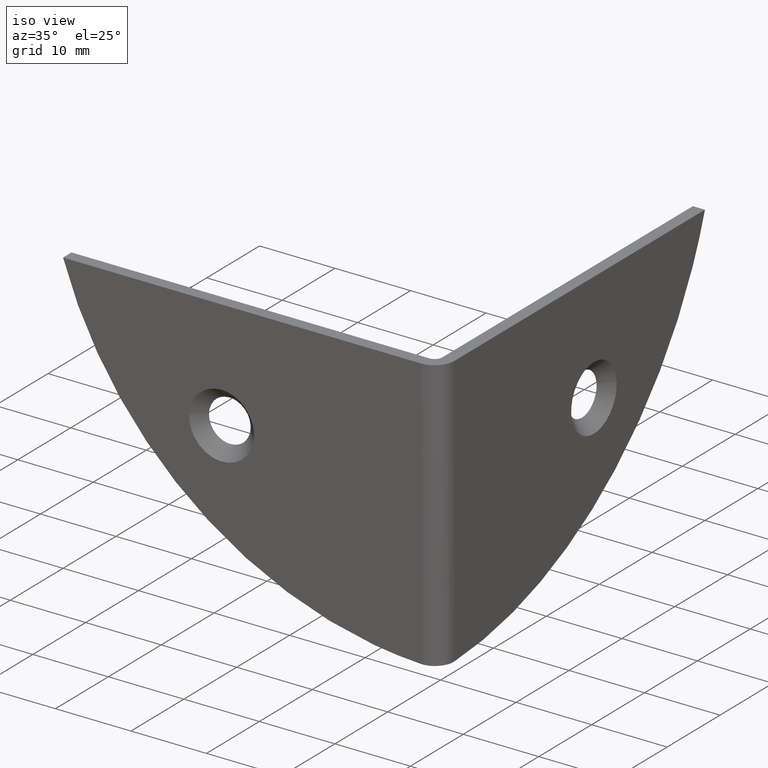
[diagram: clean part render]
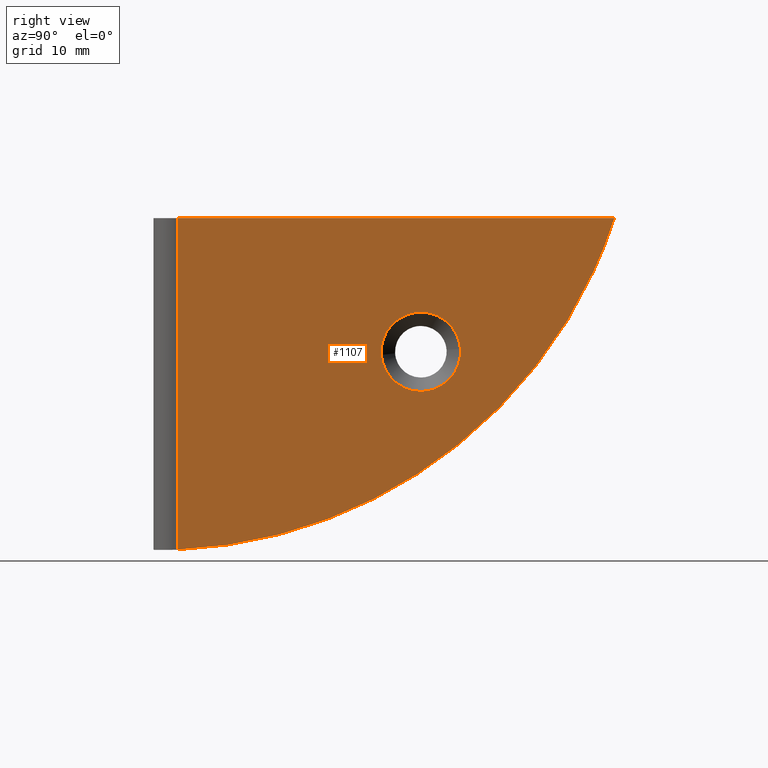
[diagram: tour spotlight — one face highlighted and labeled with its STEP entity id]
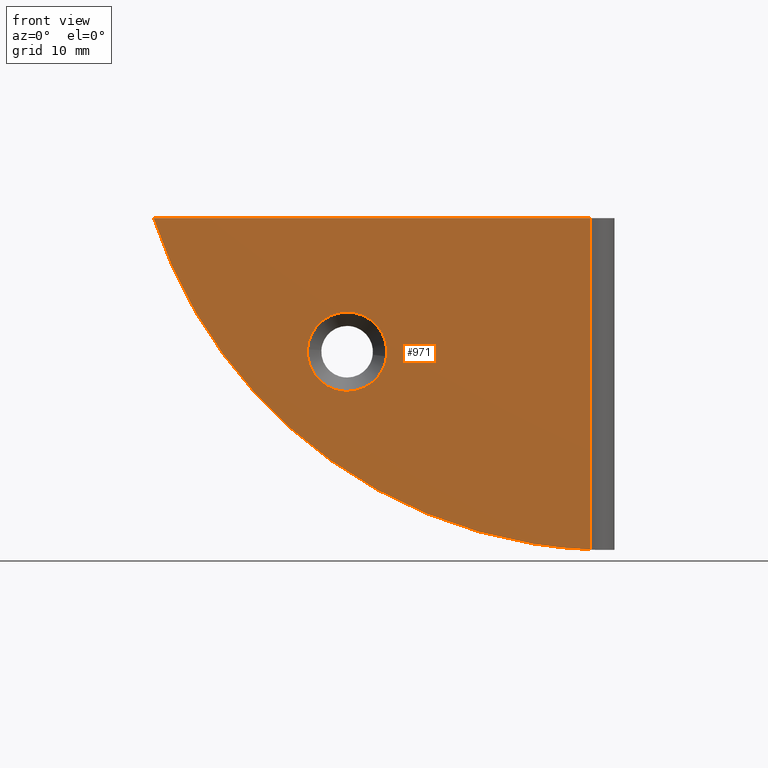
[diagram: tour spotlight — one face highlighted and labeled with its STEP entity id]
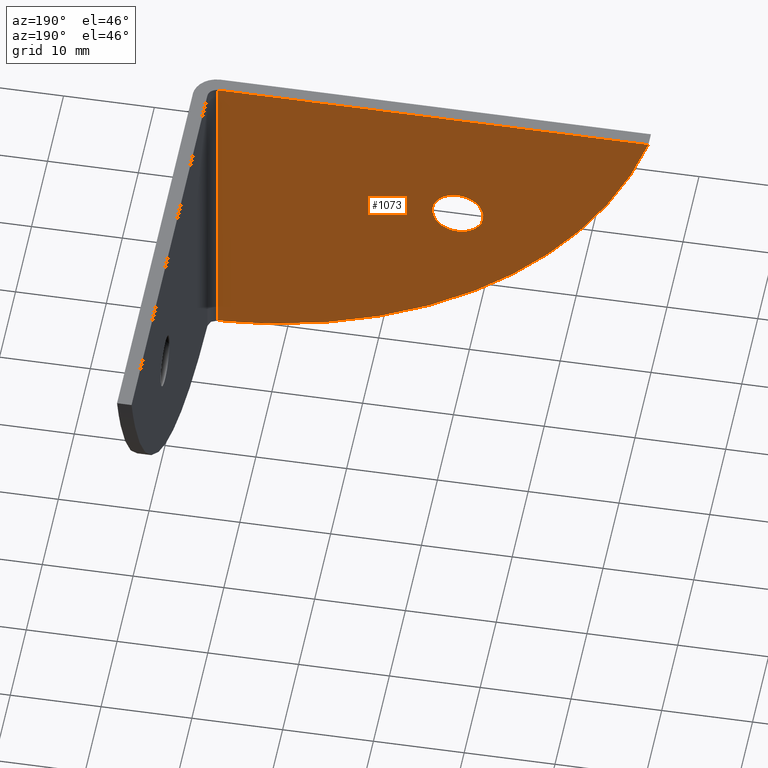
[diagram: tour spotlight — one face highlighted and labeled with its STEP entity id]
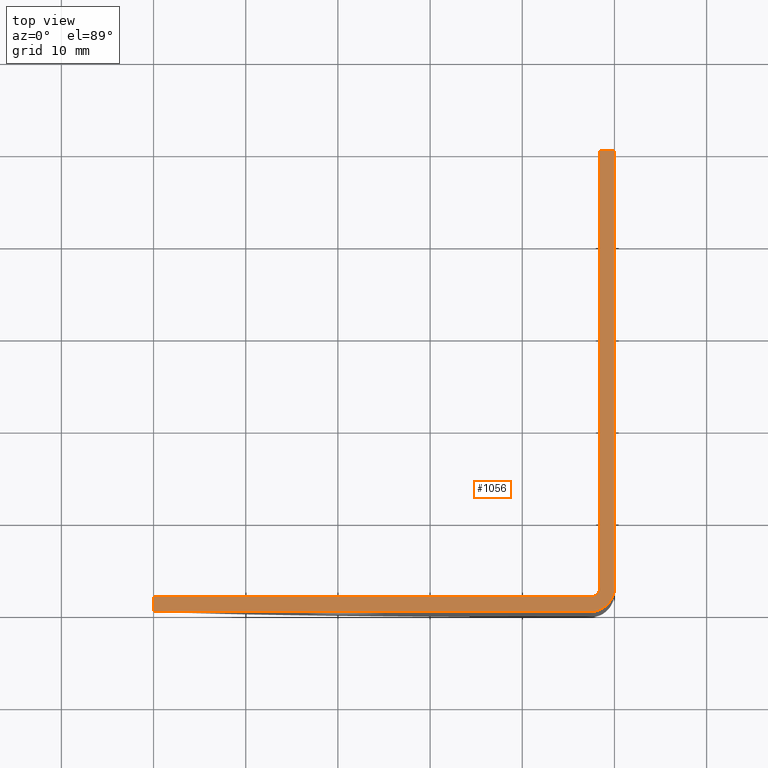
[diagram: tour spotlight — one face highlighted and labeled with its STEP entity id]
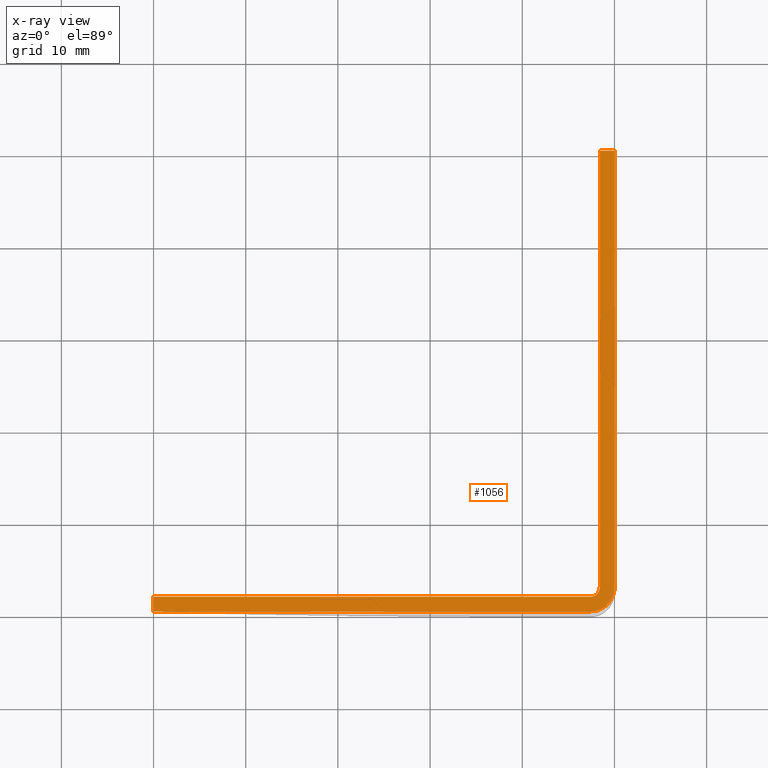
[diagram: x-ray of the same camera — body ghosted, this tour face saturated]
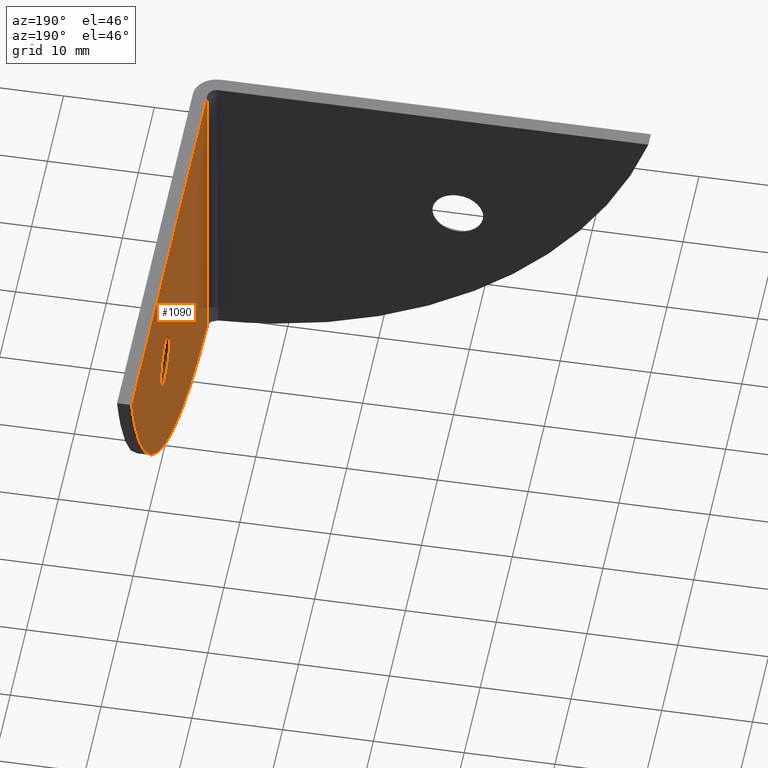
[diagram: tour spotlight — one face highlighted and labeled with its STEP entity id]
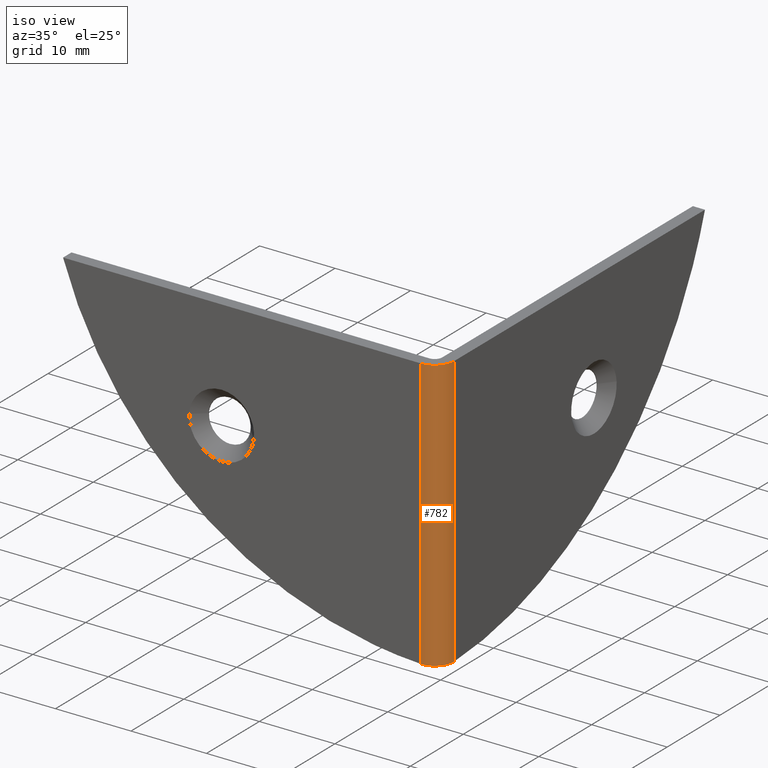
[diagram: tour spotlight — one face highlighted and labeled with its STEP entity id]
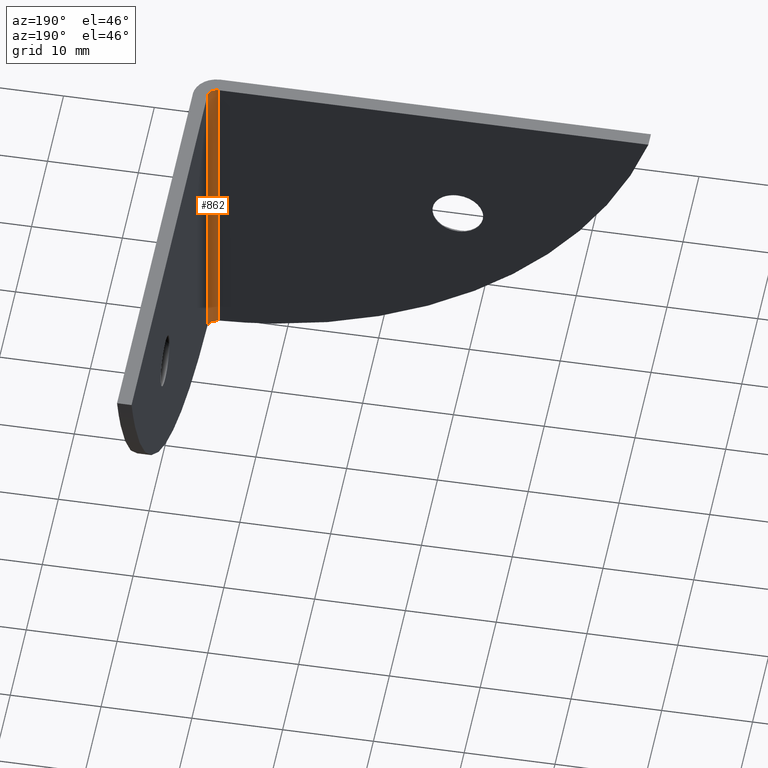
[diagram: tour spotlight — one face highlighted and labeled with its STEP entity id]
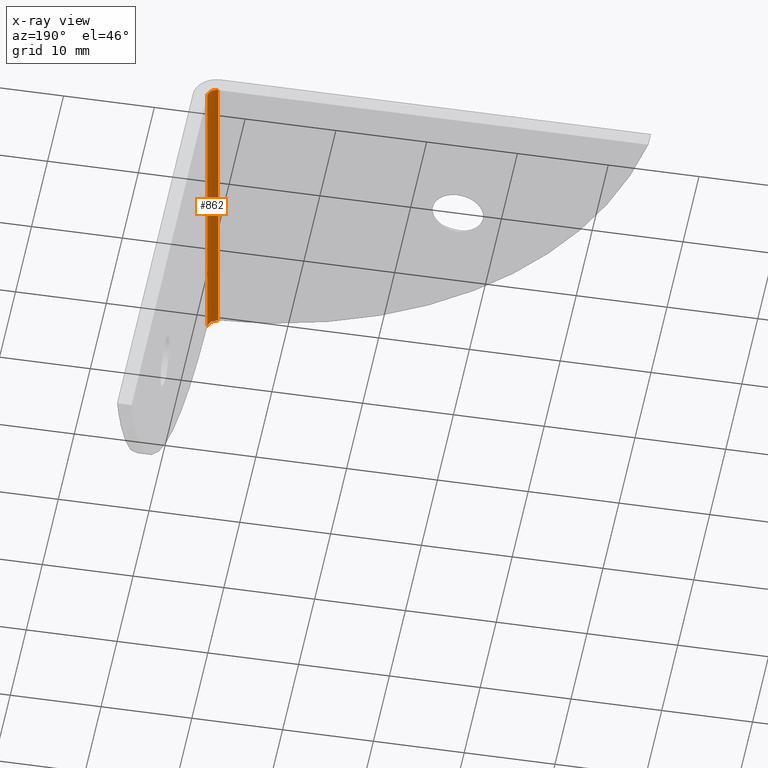
[diagram: x-ray of the same camera — body ghosted, this tour face saturated]
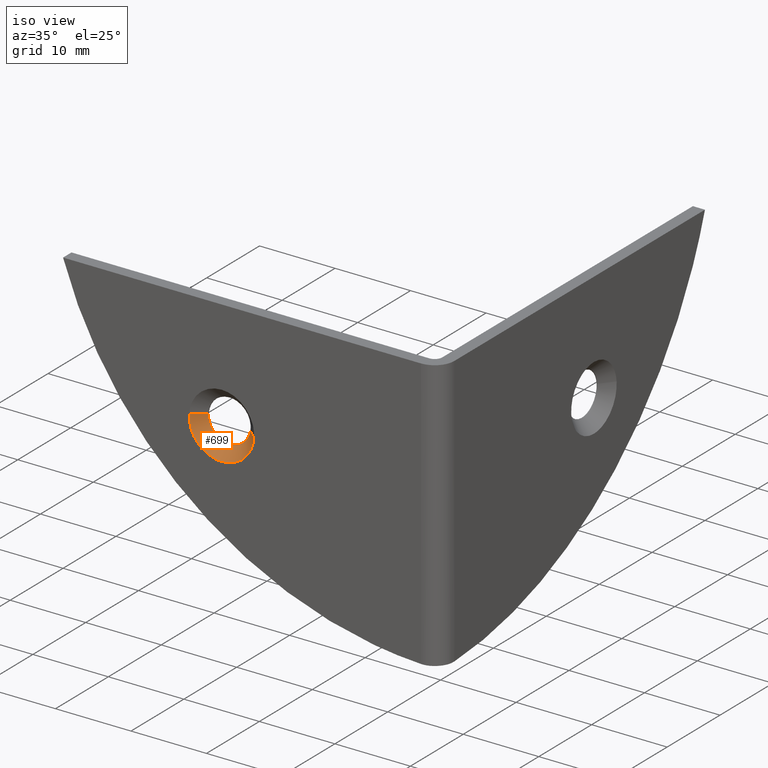
[diagram: tour spotlight — one face highlighted and labeled with its STEP entity id]
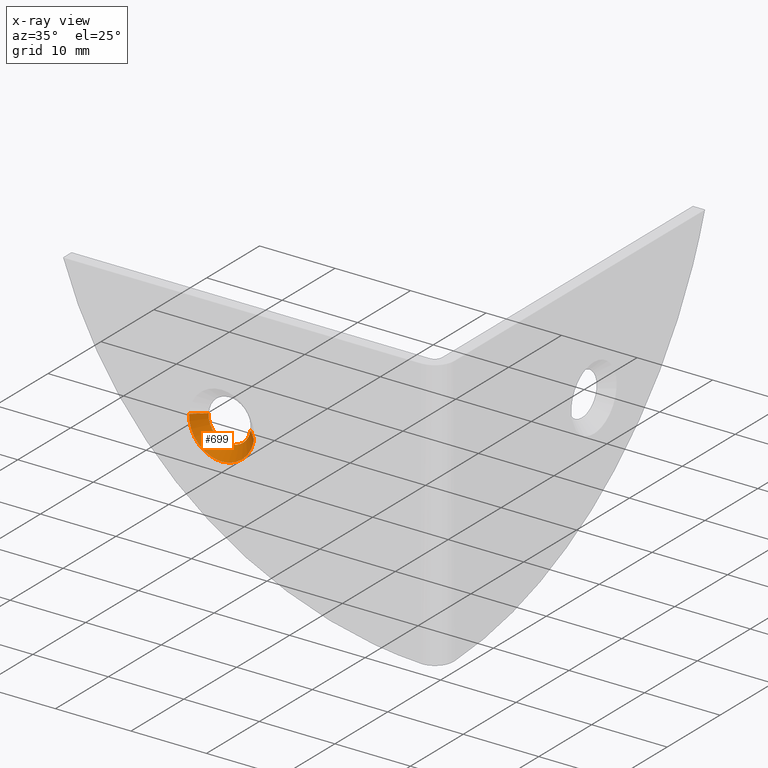
[diagram: x-ray of the same camera — body ghosted, this tour face saturated]
A machine part: a face-by-face anatomy tour. The part has 18 B-rep faces; the first image is the clean iso view, then the 8 largest visible faces are spotlighted one at a time (largest first), each with its STEP entity span.

Face 1 — right view, entity #1107. In plain terms, the highlighted face is a freeform B-spline surface patch.
Definition (entity closure, byte-faithful):
#264=CARTESIAN_POINT('',(0.000000013452583,33.286744546128453,21.837374142358239));
#265=VERTEX_POINT('',#264);
#271=CARTESIAN_POINT('',(-4.537167E-015,29.0,25.800000000000200));
#272=VERTEX_POINT('',#271);
#273=CARTESIAN_POINT('',(-4.537167E-015,29.0,25.800000000000200));
#274=CARTESIAN_POINT('',(-4.537167E-015,32.974879058931791,25.800000000000196));
#275=CARTESIAN_POINT('',(0.000000013452583,33.286744546128453,21.837374142358243));
#283=(BOUNDED_CURVE()B_SPLINE_CURVE(2,(#273,#274,#275),.UNSPECIFIED.,.F.,.U.)B_SPLINE_CURVE_WITH_KNOTS((3,3),(0.0,0.236331298259553),.UNSPECIFIED.)CURVE()GEOMETRIC_REPRESENTATION_ITEM()RATIONAL_B_SPLINE_CURVE((1.0,0.723120661385589,0.969723351219100))REPRESENTATION_ITEM(''));
#284=EDGE_CURVE('',#272,#265,#283,.T.);
#286=CARTESIAN_POINT('',(0.000000013452583,24.713255453871550,21.162625857641761));
#287=VERTEX_POINT('',#286);
#288=CARTESIAN_POINT('',(0.000000013452583,24.713255453871550,21.162625857641761));
#289=CARTESIAN_POINT('',(-4.537167E-015,24.699999999999790,21.331052510056306));
#290=CARTESIAN_POINT('',(-4.537167E-015,24.699999999999800,21.500000000000000));
#291=CARTESIAN_POINT('',(-4.537167E-015,24.699999999999793,25.800000000000203));
#292=CARTESIAN_POINT('',(-4.537167E-015,29.0,25.800000000000200));
#300=(BOUNDED_CURVE()B_SPLINE_CURVE(2,(#288,#289,#290,#291,#292),.UNSPECIFIED.,.F.,.U.)B_SPLINE_CURVE_WITH_KNOTS((3,2,3),(0.736331298259553,0.750000000000000,1.0),.UNSPECIFIED.)CURVE()GEOMETRIC_REPRESENTATION_ITEM()RATIONAL_B_SPLINE_CURVE((0.969723351219100,0.983986119800958,1.0,0.707106781186548,1.0))REPRESENTATION_ITEM(''));
#301=EDGE_CURVE('',#287,#272,#300,.T.);
#338=CARTESIAN_POINT('',(-4.537167E-015,29.0,17.199999999999790));
#339=VERTEX_POINT('',#338);
#340=CARTESIAN_POINT('',(-4.537167E-015,29.0,17.199999999999790));
#341=CARTESIAN_POINT('',(-4.537167E-015,25.025120941068213,17.199999999999797));
#342=CARTESIAN_POINT('',(0.000000013452583,24.713255453871550,21.162625857641764));
#350=(BOUNDED_CURVE()B_SPLINE_CURVE(2,(#340,#341,#342),.UNSPECIFIED.,.F.,.U.)B_SPLINE_CURVE_WITH_KNOTS((3,3),(0.500000000000000,0.736331298259553),.UNSPECIFIED.)CURVE()GEOMETRIC_REPRESENTATION_ITEM()RATIONAL_B_SPLINE_CURVE((1.0,0.723120661385589,0.969723351219100))REPRESENTATION_ITEM(''));
#351=EDGE_CURVE('',#339,#287,#350,.T.);
#353=CARTESIAN_POINT('',(0.000000013452583,33.286744546128453,21.837374142358232));
#354=CARTESIAN_POINT('',(-4.537167E-015,33.300000000000203,21.668947489943697));
#355=CARTESIAN_POINT('',(-4.537167E-015,33.300000000000203,21.500000000000000));
#356=CARTESIAN_POINT('',(-4.537167E-015,33.300000000000210,17.199999999999793));
#357=CARTESIAN_POINT('',(-4.537167E-015,29.0,17.199999999999790));
#365=(BOUNDED_CURVE()B_SPLINE_CURVE(2,(#353,#354,#355,#356,#357),.UNSPECIFIED.,.F.,.U.)B_SPLINE_CURVE_WITH_KNOTS((3,2,3),(0.236331298259553,0.250000000000000,0.500000000000000),.UNSPECIFIED.)CURVE()GEOMETRIC_REPRESENTATION_ITEM()RATIONAL_B_SPLINE_CURVE((0.969723351219100,0.983986119800958,1.0,0.707106781186548,1.0))REPRESENTATION_ITEM(''));
#366=EDGE_CURVE('',#265,#339,#365,.T.);
#716=CARTESIAN_POINT('',(0.0,2.600000000000045,36.0));
#717=VERTEX_POINT('',#716);
#764=CARTESIAN_POINT('',(0.0,2.600000000000045,0.030417649917569));
#765=VERTEX_POINT('',#764);
#775=CARTESIAN_POINT('',(0.0,2.600000000000045,36.0));
#776=CARTESIAN_POINT('',(0.0,2.600000000000045,0.030417649917569));
#777=QUASI_UNIFORM_CURVE('',1,(#775,#776),.UNSPECIFIED.,.F.,.U.);
#778=EDGE_CURVE('',#717,#765,#777,.T.);
#877=CARTESIAN_POINT('',(0.0,50.000000348136403,36.000000204069551));
#878=VERTEX_POINT('',#877);
#879=CARTESIAN_POINT('',(0.0,2.600000000000045,0.030417649917569));
#880=CARTESIAN_POINT('',(0.0,38.846215691847057,1.482055699118100));
#881=CARTESIAN_POINT('',(0.0,50.000000348136368,36.000000204069558));
#889=(BOUNDED_CURVE()B_SPLINE_CURVE(2,(#879,#880,#881),.UNSPECIFIED.,.F.,.U.)CURVE()GEOMETRIC_REPRESENTATION_ITEM()QUASI_UNIFORM_CURVE()RATIONAL_B_SPLINE_CURVE((1.0,0.820155056974720,1.0))REPRESENTATION_ITEM(''));
#890=EDGE_CURVE('',#765,#878,#889,.T.);
#1036=CARTESIAN_POINT('',(0.0,50.000000348136403,36.000000204069551));
#1037=CARTESIAN_POINT('',(0.0,2.600000000000045,36.0));
#1038=QUASI_UNIFORM_CURVE('',1,(#1036,#1037),.UNSPECIFIED.,.F.,.U.);
#1039=EDGE_CURVE('',#878,#717,#1038,.T.);
#1091=CARTESIAN_POINT('',(0.0,0.232369629523738,-1.766262928946289));
#1092=CARTESIAN_POINT('',(0.0,0.232369629523738,37.796681747712803));
#1093=CARTESIAN_POINT('',(0.0,52.367631566190752,-1.766262928946289));
#1094=CARTESIAN_POINT('',(0.0,52.367631566190752,37.796681747712803));
#1095=B_SPLINE_SURFACE_WITH_KNOTS('',1,1,((#1091,#1093),(#1092,#1094)),.UNSPECIFIED.,.F.,.F.,.U.,(2,2),(2,2),(0.0,39.562944676659093),(0.0,52.135261936667007),.UNSPECIFIED.);
#1096=ORIENTED_EDGE('',*,*,#1039,.T.);
#1097=ORIENTED_EDGE('',*,*,#778,.T.);
#1098=ORIENTED_EDGE('',*,*,#890,.T.);
#1099=EDGE_LOOP('',(#1096,#1097,#1098));
#1100=FACE_OUTER_BOUND('',#1099,.T.);
#1101=ORIENTED_EDGE('',*,*,#351,.T.);
#1102=ORIENTED_EDGE('',*,*,#301,.T.);
#1103=ORIENTED_EDGE('',*,*,#284,.T.);
#1104=ORIENTED_EDGE('',*,*,#366,.T.);
#1105=EDGE_LOOP('',(#1101,#1102,#1103,#1104));
#1106=FACE_BOUND('',#1105,.T.);
#1107=ADVANCED_FACE('',(#1100,#1106),#1095,.F.);

Face 2 — front view, entity #971. In plain terms, the highlighted face is a freeform B-spline surface patch.
Definition (entity closure, byte-faithful):
#596=CARTESIAN_POINT('',(-24.730059036636160,-1.071119E-012,20.992452790967491));
#597=VERTEX_POINT('',#596);
#603=CARTESIAN_POINT('',(-29.0,4.077939E-015,25.800000000000001));
#604=VERTEX_POINT('',#603);
#605=CARTESIAN_POINT('',(-24.730059036636160,-1.071119E-012,20.992452790967494));
#606=CARTESIAN_POINT('',(-24.700000000000006,4.077939E-015,21.245336285488381));
#607=CARTESIAN_POINT('',(-24.699999999999999,4.077939E-015,21.500000000000000));
#608=CARTESIAN_POINT('',(-24.699999999999999,4.077939E-015,25.799999999999990));
#609=CARTESIAN_POINT('',(-29.0,4.077939E-015,25.800000000000001));
#617=(BOUNDED_CURVE()B_SPLINE_CURVE(2,(#605,#606,#607,#608,#609),.UNSPECIFIED.,.F.,.U.)B_SPLINE_CURVE_WITH_KNOTS((3,2,3),(0.229562473514986,0.250000000000000,0.500000000000000),.UNSPECIFIED.)CURVE()GEOMETRIC_REPRESENTATION_ITEM()RATIONAL_B_SPLINE_CURVE((0.956026754186595,0.976055948332876,1.0,0.707106781186547,1.0))REPRESENTATION_ITEM(''));
#618=EDGE_CURVE('',#597,#604,#617,.T.);
#620=CARTESIAN_POINT('',(-33.291979633229523,-2.877172E-011,21.762508720217951));
#621=VERTEX_POINT('',#620);
#622=CARTESIAN_POINT('',(-29.0,4.077939E-015,25.800000000000001));
#623=CARTESIAN_POINT('',(-33.045036087286007,4.077939E-015,25.800000000000004));
#624=CARTESIAN_POINT('',(-33.291979633229523,-2.877172E-011,21.762508720217951));
#632=(BOUNDED_CURVE()B_SPLINE_CURVE(2,(#622,#623,#624),.UNSPECIFIED.,.F.,.U.)B_SPLINE_CURVE_WITH_KNOTS((3,3),(0.500000000000000,0.739332962224577),.UNSPECIFIED.)CURVE()GEOMETRIC_REPRESENTATION_ITEM()RATIONAL_B_SPLINE_CURVE((1.0,0.719603993303541,0.976072041635928))REPRESENTATION_ITEM(''));
#633=EDGE_CURVE('',#604,#621,#632,.T.);
#666=CARTESIAN_POINT('',(-29.0,4.077939E-015,17.199999999999999));
#667=VERTEX_POINT('',#666);
#668=CARTESIAN_POINT('',(-33.291979633229516,-2.877172E-011,21.762508720217951));
#669=CARTESIAN_POINT('',(-33.300000000000004,4.077939E-015,21.631376882400847));
#670=CARTESIAN_POINT('',(-33.299999999999997,4.077939E-015,21.500000000000000));
#671=CARTESIAN_POINT('',(-33.299999999999997,4.077939E-015,17.200000000000006));
#672=CARTESIAN_POINT('',(-29.0,4.077939E-015,17.199999999999999));
#680=(BOUNDED_CURVE()B_SPLINE_CURVE(2,(#668,#669,#670,#671,#672),.UNSPECIFIED.,.F.,.U.)B_SPLINE_CURVE_WITH_KNOTS((3,2,3),(0.739332962224576,0.750000000000000,1.0),.UNSPECIFIED.)CURVE()GEOMETRIC_REPRESENTATION_ITEM()RATIONAL_B_SPLINE_CURVE((0.976072041635928,0.987502787883006,1.0,0.707106781186547,1.0))REPRESENTATION_ITEM(''));
#681=EDGE_CURVE('',#621,#667,#680,.T.);
#683=CARTESIAN_POINT('',(-29.0,4.077939E-015,17.199999999999999));
#684=CARTESIAN_POINT('',(-25.180849538424102,4.077939E-015,17.199999999999999));
#685=CARTESIAN_POINT('',(-24.730059036636153,-1.071119E-012,20.992452790967491));
#693=(BOUNDED_CURVE()B_SPLINE_CURVE(2,(#683,#684,#685),.UNSPECIFIED.,.F.,.U.)B_SPLINE_CURVE_WITH_KNOTS((3,3),(0.0,0.229562473514986),.UNSPECIFIED.)CURVE()GEOMETRIC_REPRESENTATION_ITEM()RATIONAL_B_SPLINE_CURVE((1.0,0.731050832853671,0.956026754186595))REPRESENTATION_ITEM(''));
#694=EDGE_CURVE('',#667,#597,#693,.T.);
#714=CARTESIAN_POINT('',(-2.600000000000000,0.0,36.0));
#715=VERTEX_POINT('',#714);
#731=CARTESIAN_POINT('',(-2.600000000000000,0.0,0.030417649917541));
#732=VERTEX_POINT('',#731);
#733=CARTESIAN_POINT('',(-2.600000000000000,0.0,0.030417649917541));
#734=CARTESIAN_POINT('',(-2.600000000000000,0.0,36.0));
#735=QUASI_UNIFORM_CURVE('',1,(#733,#734),.UNSPECIFIED.,.F.,.U.);
#736=EDGE_CURVE('',#732,#715,#735,.T.);
#937=CARTESIAN_POINT('',(-52.367630273655742,0.0,37.796680782933421));
#938=CARTESIAN_POINT('',(-0.232368803113891,0.0,37.796680782933421));
#939=CARTESIAN_POINT('',(-52.367630273655742,0.0,-1.766263893725704));
#940=CARTESIAN_POINT('',(-0.232368803113891,0.0,-1.766263893725704));
#941=B_SPLINE_SURFACE_WITH_KNOTS('',1,1,((#937,#939),(#938,#940)),.UNSPECIFIED.,.F.,.F.,.U.,(2,2),(2,2),(0.0,52.135261470541842),(0.0,39.562944676659129),.UNSPECIFIED.);
#942=CARTESIAN_POINT('',(-50.000000348136702,0.0,36.000000204069551));
#943=VERTEX_POINT('',#942);
#944=CARTESIAN_POINT('',(-50.000000348136659,0.0,36.000000204069572));
#945=CARTESIAN_POINT('',(-38.846215691847277,0.0,1.482055699117878));
#946=CARTESIAN_POINT('',(-2.600000000000001,0.0,0.030417649917548));
#954=(BOUNDED_CURVE()B_SPLINE_CURVE(2,(#944,#945,#946),.UNSPECIFIED.,.F.,.U.)CURVE()GEOMETRIC_REPRESENTATION_ITEM()QUASI_UNIFORM_CURVE()RATIONAL_B_SPLINE_CURVE((1.0,0.820155056974718,1.0))REPRESENTATION_ITEM(''));
#955=EDGE_CURVE('',#943,#732,#954,.T.);
#956=ORIENTED_EDGE('',*,*,#955,.T.);
#957=ORIENTED_EDGE('',*,*,#736,.T.);
#958=CARTESIAN_POINT('',(-50.000000348136702,0.0,36.000000204069551));
#959=CARTESIAN_POINT('',(-2.600000000000000,0.0,36.0));
#960=QUASI_UNIFORM_CURVE('',1,(#958,#959),.UNSPECIFIED.,.F.,.U.);
#961=EDGE_CURVE('',#943,#715,#960,.T.);
#962=ORIENTED_EDGE('',*,*,#961,.F.);
#963=EDGE_LOOP('',(#956,#957,#962));
#964=FACE_OUTER_BOUND('',#963,.T.);
#965=ORIENTED_EDGE('',*,*,#633,.F.);
#966=ORIENTED_EDGE('',*,*,#618,.F.);
#967=ORIENTED_EDGE('',*,*,#694,.F.);
#968=ORIENTED_EDGE('',*,*,#681,.F.);
#969=EDGE_LOOP('',(#965,#966,#967,#968));
#970=FACE_BOUND('',#969,.T.);
#971=ADVANCED_FACE('',(#964,#970),#941,.F.);

Face 3 — auxiliary view, entity #1073. In plain terms, the highlighted face is a freeform B-spline surface patch.
Definition (entity closure, byte-faithful):
#422=CARTESIAN_POINT('',(-31.794777435576389,1.600000000000000,21.670935910776691));
#423=VERTEX_POINT('',#422);
#429=CARTESIAN_POINT('',(-29.0,1.600000000000000,24.300000000000001));
#430=VERTEX_POINT('',#429);
#431=CARTESIAN_POINT('',(-29.0,1.600000000000000,24.300000000000001));
#432=CARTESIAN_POINT('',(-31.633976987186585,1.600000000000000,24.300000000000008));
#433=CARTESIAN_POINT('',(-31.794777435576385,1.600000000000000,21.670935910776699));
#441=(BOUNDED_CURVE()B_SPLINE_CURVE(2,(#431,#432,#433),.UNSPECIFIED.,.F.,.U.)B_SPLINE_CURVE_WITH_KNOTS((3,3),(0.500000000000000,0.739332962232202),.UNSPECIFIED.)CURVE()GEOMETRIC_REPRESENTATION_ITEM()RATIONAL_B_SPLINE_CURVE((1.0,0.719603993294608,0.976072041652270))REPRESENTATION_ITEM(''));
#442=EDGE_CURVE('',#430,#423,#441,.T.);
#444=CARTESIAN_POINT('',(-28.015473747514989,1.600000000000000,24.121203551452819));
#445=VERTEX_POINT('',#444);
#446=CARTESIAN_POINT('',(-28.015473747514989,1.600000000000000,24.121203551452815));
#447=CARTESIAN_POINT('',(-28.491501567724566,1.600000000000001,24.299999999999994));
#448=CARTESIAN_POINT('',(-29.0,1.600000000000000,24.300000000000001));
#456=(BOUNDED_CURVE()B_SPLINE_CURVE(2,(#446,#447,#448),.UNSPECIFIED.,.F.,.U.)B_SPLINE_CURVE_WITH_KNOTS((3,3),(0.440284416501393,0.500000000000000),.UNSPECIFIED.)CURVE()GEOMETRIC_REPRESENTATION_ITEM()RATIONAL_B_SPLINE_CURVE((0.893499855195470,0.930038842143078,1.0))REPRESENTATION_ITEM(''));
#457=EDGE_CURVE('',#445,#430,#456,.T.);
#507=CARTESIAN_POINT('',(-29.0,1.600000000000000,18.699999999999999));
#508=VERTEX_POINT('',#507);
#509=CARTESIAN_POINT('',(-29.0,1.600000000000000,18.699999999999999));
#510=CARTESIAN_POINT('',(-26.199999999999996,1.600000000000000,18.700000000000003));
#511=CARTESIAN_POINT('',(-26.199999999999999,1.600000000000000,21.500000000000000));
#512=CARTESIAN_POINT('',(-26.199999999999999,1.600000000000001,23.439310089143987));
#513=CARTESIAN_POINT('',(-28.015473747514989,1.600000000000000,24.121203551452815));
#521=(BOUNDED_CURVE()B_SPLINE_CURVE(2,(#509,#510,#511,#512,#513),.UNSPECIFIED.,.F.,.U.)B_SPLINE_CURVE_WITH_KNOTS((3,2,3),(0.0,0.250000000000000,0.440284416501393),.UNSPECIFIED.)CURVE()GEOMETRIC_REPRESENTATION_ITEM()RATIONAL_B_SPLINE_CURVE((1.0,0.707106781186547,1.0,0.777067939043469,0.893499855195470))REPRESENTATION_ITEM(''));
#522=EDGE_CURVE('',#508,#445,#521,.T.);
#524=CARTESIAN_POINT('',(-31.794777435576389,1.600000000000000,21.670935910776695));
#525=CARTESIAN_POINT('',(-31.800000000000001,1.600000000000000,21.585547737315366));
#526=CARTESIAN_POINT('',(-31.800000000000001,1.600000000000000,21.500000000000000));
#527=CARTESIAN_POINT('',(-31.800000000000001,1.600000000000000,18.700000000000003));
#528=CARTESIAN_POINT('',(-29.0,1.600000000000000,18.699999999999999));
#536=(BOUNDED_CURVE()B_SPLINE_CURVE(2,(#524,#525,#526,#527,#528),.UNSPECIFIED.,.F.,.U.)B_SPLINE_CURVE_WITH_KNOTS((3,2,3),(0.739332962232202,0.750000000000000,1.0),.UNSPECIFIED.)CURVE()GEOMETRIC_REPRESENTATION_ITEM()RATIONAL_B_SPLINE_CURVE((0.976072041652271,0.987502787891940,1.0,0.707106781186547,1.0))REPRESENTATION_ITEM(''));
#537=EDGE_CURVE('',#423,#508,#536,.T.);
#797=CARTESIAN_POINT('',(-2.600000000000195,1.600000000000045,0.030417649917562));
#798=VERTEX_POINT('',#797);
#816=CARTESIAN_POINT('',(-2.600000000000195,1.600000000000000,36.0));
#817=VERTEX_POINT('',#816);
#818=CARTESIAN_POINT('',(-2.600000000000195,1.600000000000000,36.0));
#819=CARTESIAN_POINT('',(-2.600000000000195,1.600000000000045,0.030417649917562));
#820=QUASI_UNIFORM_CURVE('',1,(#818,#819),.UNSPECIFIED.,.F.,.U.);
#821=EDGE_CURVE('',#817,#798,#820,.T.);
#993=CARTESIAN_POINT('',(-50.000000348136702,1.600000000000045,36.000000204069551));
#994=VERTEX_POINT('',#993);
#1000=CARTESIAN_POINT('',(-50.000000348136659,1.600000000000045,36.000000204069572));
#1001=CARTESIAN_POINT('',(-38.846215691847327,1.600000000000045,1.482055699117995));
#1002=CARTESIAN_POINT('',(-2.600000000000195,1.600000000000045,0.030417649917562));
#1010=(BOUNDED_CURVE()B_SPLINE_CURVE(2,(#1000,#1001,#1002),.UNSPECIFIED.,.F.,.U.)CURVE()GEOMETRIC_REPRESENTATION_ITEM()QUASI_UNIFORM_CURVE()RATIONAL_B_SPLINE_CURVE((1.0,0.820155056974719,1.0))REPRESENTATION_ITEM(''));
#1011=EDGE_CURVE('',#994,#798,#1010,.T.);
#1048=CARTESIAN_POINT('',(-50.000000348136702,1.600000000000045,36.000000204069551));
#1049=CARTESIAN_POINT('',(-2.600000000000195,1.600000000000000,36.0));
#1050=QUASI_UNIFORM_CURVE('',1,(#1048,#1049),.UNSPECIFIED.,.F.,.U.);
#1051=EDGE_CURVE('',#994,#817,#1050,.T.);
#1057=CARTESIAN_POINT('',(-52.367630273655728,1.600000000000000,37.796680782933407));
#1058=CARTESIAN_POINT('',(-0.232368803114098,1.600000000000000,37.796680782933407));
#1059=CARTESIAN_POINT('',(-52.367630273655728,1.600000000000000,-1.766263893725684));
#1060=CARTESIAN_POINT('',(-0.232368803114098,1.600000000000000,-1.766263893725684));
#1061=B_SPLINE_SURFACE_WITH_KNOTS('',1,1,((#1057,#1059),(#1058,#1060)),.UNSPECIFIED.,.F.,.F.,.U.,(2,2),(2,2),(0.0,52.135261470541629),(0.0,39.562944676659100),.UNSPECIFIED.);
#1062=ORIENTED_EDGE('',*,*,#1051,.T.);
#1063=ORIENTED_EDGE('',*,*,#821,.T.);
#1064=ORIENTED_EDGE('',*,*,#1011,.F.);
#1065=EDGE_LOOP('',(#1062,#1063,#1064));
#1066=FACE_OUTER_BOUND('',#1065,.T.);
#1067=ORIENTED_EDGE('',*,*,#442,.T.);
#1068=ORIENTED_EDGE('',*,*,#537,.T.);
#1069=ORIENTED_EDGE('',*,*,#522,.T.);
#1070=ORIENTED_EDGE('',*,*,#457,.T.);
#1071=EDGE_LOOP('',(#1067,#1068,#1069,#1070));
#1072=FACE_BOUND('',#1071,.T.);
#1073=ADVANCED_FACE('',(#1066,#1072),#1061,.T.);

Face 4 — top view, entity #1056. An x-ray twin of the same camera follows (body ghosted, this face saturated) — the face is partly hidden behind the body. In plain terms, the highlighted face is a freeform B-spline surface patch.
Definition (entity closure, byte-faithful):
#714=CARTESIAN_POINT('',(-2.600000000000000,0.0,36.0));
#715=VERTEX_POINT('',#714);
#716=CARTESIAN_POINT('',(0.0,2.600000000000045,36.0));
#717=VERTEX_POINT('',#716);
#718=CARTESIAN_POINT('',(-2.600000000000000,4.510281E-014,36.0));
#719=CARTESIAN_POINT('',(0.0,4.510281E-014,36.0));
#720=CARTESIAN_POINT('',(0.0,2.600000000000045,36.0));
#728=(BOUNDED_CURVE()B_SPLINE_CURVE(2,(#718,#719,#720),.UNSPECIFIED.,.F.,.U.)CURVE()GEOMETRIC_REPRESENTATION_ITEM()QUASI_UNIFORM_CURVE()RATIONAL_B_SPLINE_CURVE((1.0,0.707106781186548,1.0))REPRESENTATION_ITEM(''));
#729=EDGE_CURVE('',#715,#717,#728,.T.);
#816=CARTESIAN_POINT('',(-2.600000000000195,1.600000000000000,36.0));
#817=VERTEX_POINT('',#816);
#823=CARTESIAN_POINT('',(-1.600000000000195,2.600000000000000,36.0));
#824=VERTEX_POINT('',#823);
#825=CARTESIAN_POINT('',(-1.600000000000195,2.600000000000000,36.0));
#826=CARTESIAN_POINT('',(-1.600000000000195,1.600000000000000,36.0));
#827=CARTESIAN_POINT('',(-2.600000000000195,1.600000000000000,36.0));
#835=(BOUNDED_CURVE()B_SPLINE_CURVE(2,(#825,#826,#827),.UNSPECIFIED.,.F.,.U.)CURVE()GEOMETRIC_REPRESENTATION_ITEM()QUASI_UNIFORM_CURVE()RATIONAL_B_SPLINE_CURVE((1.0,0.707106781186548,1.0))REPRESENTATION_ITEM(''));
#836=EDGE_CURVE('',#824,#817,#835,.T.);
#877=CARTESIAN_POINT('',(0.0,50.000000348136403,36.000000204069551));
#878=VERTEX_POINT('',#877);
#914=CARTESIAN_POINT('',(-1.600000000000155,50.000000348136403,36.000000204069551));
#915=VERTEX_POINT('',#914);
#929=CARTESIAN_POINT('',(-1.600000000000155,50.000000348136403,36.000000204069551));
#930=CARTESIAN_POINT('',(0.0,50.000000348136403,36.000000204069551));
#931=QUASI_UNIFORM_CURVE('',1,(#929,#930),.UNSPECIFIED.,.F.,.U.);
#932=EDGE_CURVE('',#915,#878,#931,.T.);
#942=CARTESIAN_POINT('',(-50.000000348136702,0.0,36.000000204069551));
#943=VERTEX_POINT('',#942);
#958=CARTESIAN_POINT('',(-50.000000348136702,0.0,36.000000204069551));
#959=CARTESIAN_POINT('',(-2.600000000000000,0.0,36.0));
#960=QUASI_UNIFORM_CURVE('',1,(#958,#959),.UNSPECIFIED.,.F.,.U.);
#961=EDGE_CURVE('',#943,#715,#960,.T.);
#993=CARTESIAN_POINT('',(-50.000000348136702,1.600000000000045,36.000000204069551));
#994=VERTEX_POINT('',#993);
#995=CARTESIAN_POINT('',(-50.000000348136702,1.600000000000045,36.000000204069551));
#996=CARTESIAN_POINT('',(-50.000000348136702,0.0,36.000000204069551));
#997=QUASI_UNIFORM_CURVE('',1,(#995,#996),.UNSPECIFIED.,.F.,.U.);
#998=EDGE_CURVE('',#994,#943,#997,.T.);
#1029=CARTESIAN_POINT('',(2.497499920479726,-2.497499920479707,36.0));
#1030=CARTESIAN_POINT('',(-52.497501609720949,-2.497499920479707,36.0));
#1031=CARTESIAN_POINT('',(2.497499920479726,52.497501609720622,36.0));
#1032=CARTESIAN_POINT('',(-52.497501609720949,52.497501609720622,36.0));
#1033=B_SPLINE_SURFACE_WITH_KNOTS('',1,1,((#1029,#1031),(#1030,#1032)),.UNSPECIFIED.,.F.,.F.,.U.,(2,2),(2,2),(0.0,54.995001530200682),(0.0,54.995001530200327),.UNSPECIFIED.);
#1034=ORIENTED_EDGE('',*,*,#961,.T.);
#1035=ORIENTED_EDGE('',*,*,#729,.T.);
#1036=CARTESIAN_POINT('',(0.0,50.000000348136403,36.000000204069551));
#1037=CARTESIAN_POINT('',(0.0,2.600000000000045,36.0));
#1038=QUASI_UNIFORM_CURVE('',1,(#1036,#1037),.UNSPECIFIED.,.F.,.U.);
#1039=EDGE_CURVE('',#878,#717,#1038,.T.);
#1040=ORIENTED_EDGE('',*,*,#1039,.F.);
#1041=ORIENTED_EDGE('',*,*,#932,.F.);
#1042=CARTESIAN_POINT('',(-1.600000000000155,50.000000348136403,36.000000204069551));
#1043=CARTESIAN_POINT('',(-1.600000000000195,2.600000000000000,36.0));
#1044=QUASI_UNIFORM_CURVE('',1,(#1042,#1043),.UNSPECIFIED.,.F.,.U.);
#1045=EDGE_CURVE('',#915,#824,#1044,.T.);
#1046=ORIENTED_EDGE('',*,*,#1045,.T.);
#1047=ORIENTED_EDGE('',*,*,#836,.T.);
#1048=CARTESIAN_POINT('',(-50.000000348136702,1.600000000000045,36.000000204069551));
#1049=CARTESIAN_POINT('',(-2.600000000000195,1.600000000000000,36.0));
#1050=QUASI_UNIFORM_CURVE('',1,(#1048,#1049),.UNSPECIFIED.,.F.,.U.);
#1051=EDGE_CURVE('',#994,#817,#1050,.T.);
#1052=ORIENTED_EDGE('',*,*,#1051,.F.);
#1053=ORIENTED_EDGE('',*,*,#998,.T.);
#1054=EDGE_LOOP('',(#1034,#1035,#1040,#1041,#1046,#1047,#1052,#1053));
#1055=FACE_OUTER_BOUND('',#1054,.T.);
#1056=ADVANCED_FACE('',(#1055),#1033,.F.);

Face 5 — auxiliary view, entity #1090. In plain terms, the highlighted face is a freeform B-spline surface patch.
Definition (entity closure, byte-faithful):
#79=CARTESIAN_POINT('',(-1.600000000000200,31.781713738033840,21.180518107502440));
#80=VERTEX_POINT('',#79);
#86=CARTESIAN_POINT('',(-1.600000000000200,29.0,18.699999999999999));
#87=VERTEX_POINT('',#86);
#88=CARTESIAN_POINT('',(-1.600000000000200,31.781713738033837,21.180518107502444));
#89=CARTESIAN_POINT('',(-1.600000000000201,31.496824359591098,18.699999999999996));
#90=CARTESIAN_POINT('',(-1.600000000000200,29.0,18.699999999999999));
#98=(BOUNDED_CURVE()B_SPLINE_CURVE(2,(#88,#89,#90),.UNSPECIFIED.,.F.,.U.)B_SPLINE_CURVE_WITH_KNOTS((3,3),(0.269767759675936,0.500000000000000),.UNSPECIFIED.)CURVE()GEOMETRIC_REPRESENTATION_ITEM()RATIONAL_B_SPLINE_CURVE((0.957343728966127,0.730266152227410,1.0))REPRESENTATION_ITEM(''));
#99=EDGE_CURVE('',#80,#87,#98,.T.);
#101=CARTESIAN_POINT('',(-1.600000000000200,26.205222564419660,21.329064089287890));
#102=VERTEX_POINT('',#101);
#103=CARTESIAN_POINT('',(-1.600000000000200,29.0,18.699999999999999));
#104=CARTESIAN_POINT('',(-1.600000000000200,26.366023012691436,18.699999999999996));
#105=CARTESIAN_POINT('',(-1.600000000000200,26.205222564419667,21.329064089287893));
#113=(BOUNDED_CURVE()B_SPLINE_CURVE(2,(#103,#104,#105),.UNSPECIFIED.,.F.,.U.)B_SPLINE_CURVE_WITH_KNOTS((3,3),(0.500000000000000,0.739332962240177),.UNSPECIFIED.)CURVE()GEOMETRIC_REPRESENTATION_ITEM()RATIONAL_B_SPLINE_CURVE((1.0,0.719603993285264,0.976072041669364))REPRESENTATION_ITEM(''));
#114=EDGE_CURVE('',#87,#102,#113,.T.);
#209=CARTESIAN_POINT('',(-1.600000000000200,29.0,24.300000000000001));
#210=VERTEX_POINT('',#209);
#211=CARTESIAN_POINT('',(-1.600000000000200,26.205222564419664,21.329064089287893));
#212=CARTESIAN_POINT('',(-1.600000000000200,26.200000000000003,21.414452262749407));
#213=CARTESIAN_POINT('',(-1.600000000000200,26.199999999999999,21.500000000000000));
#214=CARTESIAN_POINT('',(-1.600000000000201,26.199999999999996,24.299999999999994));
#215=CARTESIAN_POINT('',(-1.600000000000200,29.0,24.300000000000001));
#223=(BOUNDED_CURVE()B_SPLINE_CURVE(2,(#211,#212,#213,#214,#215),.UNSPECIFIED.,.F.,.U.)B_SPLINE_CURVE_WITH_KNOTS((3,2,3),(0.739332962240177,0.750000000000000,1.0),.UNSPECIFIED.)CURVE()GEOMETRIC_REPRESENTATION_ITEM()RATIONAL_B_SPLINE_CURVE((0.976072041669362,0.987502787901283,1.0,0.707106781186547,1.0))REPRESENTATION_ITEM(''));
#224=EDGE_CURVE('',#102,#210,#223,.T.);
#226=CARTESIAN_POINT('',(-1.600000000000200,29.0,24.300000000000001));
#227=CARTESIAN_POINT('',(-1.600000000000201,31.800000000000001,24.299999999999994));
#228=CARTESIAN_POINT('',(-1.600000000000200,31.800000000000001,21.500000000000000));
#229=CARTESIAN_POINT('',(-1.600000000000200,31.800000000000001,21.339735710396400));
#230=CARTESIAN_POINT('',(-1.600000000000200,31.781713738033840,21.180518107502444));
#238=(BOUNDED_CURVE()B_SPLINE_CURVE(2,(#226,#227,#228,#229,#230),.UNSPECIFIED.,.F.,.U.)B_SPLINE_CURVE_WITH_KNOTS((3,2,3),(0.0,0.250000000000000,0.269767759675936),.UNSPECIFIED.)CURVE()GEOMETRIC_REPRESENTATION_ITEM()RATIONAL_B_SPLINE_CURVE((1.0,0.707106781186547,1.0,0.976840628959137,0.957343728966127))REPRESENTATION_ITEM(''));
#239=EDGE_CURVE('',#210,#80,#238,.T.);
#823=CARTESIAN_POINT('',(-1.600000000000195,2.600000000000000,36.0));
#824=VERTEX_POINT('',#823);
#838=CARTESIAN_POINT('',(-1.600000000000155,2.600000000000000,0.030417649917569));
#839=VERTEX_POINT('',#838);
#840=CARTESIAN_POINT('',(-1.600000000000155,2.600000000000000,0.030417649917569));
#841=CARTESIAN_POINT('',(-1.600000000000195,2.600000000000000,36.0));
#842=QUASI_UNIFORM_CURVE('',1,(#840,#841),.UNSPECIFIED.,.F.,.U.);
#843=EDGE_CURVE('',#839,#824,#842,.T.);
#914=CARTESIAN_POINT('',(-1.600000000000155,50.000000348136403,36.000000204069551));
#915=VERTEX_POINT('',#914);
#916=CARTESIAN_POINT('',(-1.600000000000155,2.600000000000000,0.030417649917569));
#917=CARTESIAN_POINT('',(-1.600000000000155,38.846215691847050,1.482055699118079));
#918=CARTESIAN_POINT('',(-1.600000000000155,50.000000348136368,36.000000204069558));
#926=(BOUNDED_CURVE()B_SPLINE_CURVE(2,(#916,#917,#918),.UNSPECIFIED.,.F.,.U.)CURVE()GEOMETRIC_REPRESENTATION_ITEM()QUASI_UNIFORM_CURVE()RATIONAL_B_SPLINE_CURVE((1.0,0.820155056974719,1.0))REPRESENTATION_ITEM(''));
#927=EDGE_CURVE('',#839,#915,#926,.T.);
#1042=CARTESIAN_POINT('',(-1.600000000000155,50.000000348136403,36.000000204069551));
#1043=CARTESIAN_POINT('',(-1.600000000000195,2.600000000000000,36.0));
#1044=QUASI_UNIFORM_CURVE('',1,(#1042,#1043),.UNSPECIFIED.,.F.,.U.);
#1045=EDGE_CURVE('',#915,#824,#1044,.T.);
#1074=CARTESIAN_POINT('',(-1.600000000000195,0.232369629523691,-1.766262928946292));
#1075=CARTESIAN_POINT('',(-1.600000000000195,52.367631566190759,-1.766262928946292));
#1076=CARTESIAN_POINT('',(-1.600000000000195,0.232369629523691,37.796681747712803));
#1077=CARTESIAN_POINT('',(-1.600000000000195,52.367631566190759,37.796681747712803));
#1078=B_SPLINE_SURFACE_WITH_KNOTS('',1,1,((#1074,#1076),(#1075,#1077)),.UNSPECIFIED.,.F.,.F.,.U.,(2,2),(2,2),(0.0,52.135261936667071),(0.0,39.562944676659093),.UNSPECIFIED.);
#1079=ORIENTED_EDGE('',*,*,#927,.F.);
#1080=ORIENTED_EDGE('',*,*,#843,.T.);
#1081=ORIENTED_EDGE('',*,*,#1045,.F.);
#1082=EDGE_LOOP('',(#1079,#1080,#1081));
#1083=FACE_OUTER_BOUND('',#1082,.T.);
#1084=ORIENTED_EDGE('',*,*,#114,.F.);
#1085=ORIENTED_EDGE('',*,*,#99,.F.);
#1086=ORIENTED_EDGE('',*,*,#239,.F.);
#1087=ORIENTED_EDGE('',*,*,#224,.F.);
#1088=EDGE_LOOP('',(#1084,#1085,#1086,#1087));
#1089=FACE_BOUND('',#1088,.T.);
#1090=ADVANCED_FACE('',(#1083,#1089),#1078,.F.);

Face 6 — iso view, entity #782. In plain terms, the highlighted face is a freeform B-spline surface patch.
Definition (entity closure, byte-faithful):
#700=CARTESIAN_POINT('',(-2.668060065600471,0.000890955063597,36.900000000000013));
#701=CARTESIAN_POINT('',(-2.668060065600471,0.000890955063597,-0.922500000000007));
#702=CARTESIAN_POINT('',(0.194960476252669,-0.074079876296341,36.900000000000006));
#703=CARTESIAN_POINT('',(0.194960476252669,-0.074079876296341,-0.922500000000007));
#704=CARTESIAN_POINT('',(-0.006436353280031,2.782832191948327,36.900000000000006));
#705=CARTESIAN_POINT('',(-0.006436353280031,2.782832191948327,-0.922500000000007));
#713=(BOUNDED_SURFACE()B_SPLINE_SURFACE(1,2,((#700,#702,#704),(#701,#703,#705)),.UNSPECIFIED.,.F.,.F.,.U.)B_SPLINE_SURFACE_WITH_KNOTS((2,2),(3,3),(0.0,37.822500000000012),(0.0,4.604970089017194),.UNSPECIFIED.)GEOMETRIC_REPRESENTATION_ITEM()RATIONAL_B_SPLINE_SURFACE(((1.0,0.670944223554958,0.996392647817502),(1.0,0.670944223554958,0.996392647817502)))REPRESENTATION_ITEM('')SURFACE());
#714=CARTESIAN_POINT('',(-2.600000000000000,0.0,36.0));
#715=VERTEX_POINT('',#714);
#716=CARTESIAN_POINT('',(0.0,2.600000000000045,36.0));
#717=VERTEX_POINT('',#716);
#718=CARTESIAN_POINT('',(-2.600000000000000,4.510281E-014,36.0));
#719=CARTESIAN_POINT('',(0.0,4.510281E-014,36.0));
#720=CARTESIAN_POINT('',(0.0,2.600000000000045,36.0));
#728=(BOUNDED_CURVE()B_SPLINE_CURVE(2,(#718,#719,#720),.UNSPECIFIED.,.F.,.U.)CURVE()GEOMETRIC_REPRESENTATION_ITEM()QUASI_UNIFORM_CURVE()RATIONAL_B_SPLINE_CURVE((1.0,0.707106781186548,1.0))REPRESENTATION_ITEM(''));
#729=EDGE_CURVE('',#715,#717,#728,.T.);
#730=ORIENTED_EDGE('',*,*,#729,.F.);
#731=CARTESIAN_POINT('',(-2.600000000000000,0.0,0.030417649917541));
#732=VERTEX_POINT('',#731);
#733=CARTESIAN_POINT('',(-2.600000000000000,0.0,0.030417649917541));
#734=CARTESIAN_POINT('',(-2.600000000000000,0.0,36.0));
#735=QUASI_UNIFORM_CURVE('',1,(#733,#734),.UNSPECIFIED.,.F.,.U.);
#736=EDGE_CURVE('',#732,#715,#735,.T.);
#737=ORIENTED_EDGE('',*,*,#736,.F.);
#738=CARTESIAN_POINT('',(-1.600000000000195,0.199999999999978,0.0));
#739=VERTEX_POINT('',#738);
#740=CARTESIAN_POINT('',(-1.600000000000195,0.199999999999978,0.0));
#741=CARTESIAN_POINT('',(-1.760048912411635,0.133312953161882,0.003327578744689));
#742=CARTESIAN_POINT('',(-1.923508532714006,0.083802768956140,0.007466023404552));
#743=CARTESIAN_POINT('',(-2.256845791932715,0.017146074531265,0.017541742794887));
#744=CARTESIAN_POINT('',(-2.426723547798832,4.692901E-014,0.023478037429899));
#745=CARTESIAN_POINT('',(-2.600000000000000,0.0,0.030417649917541));
#746=B_SPLINE_CURVE_WITH_KNOTS('',3,(#740,#741,#742,#743,#744,#745),.UNSPECIFIED.,.F.,.U.,(4,2,4),(0.0,0.500000000000000,1.0),.UNSPECIFIED.);
#747=EDGE_CURVE('',#739,#732,#746,.T.);
#748=ORIENTED_EDGE('',*,*,#747,.F.);
#749=CARTESIAN_POINT('',(-0.200000000000022,1.600000000000000,0.0));
#750=VERTEX_POINT('',#749);
#751=CARTESIAN_POINT('',(-0.200000000000019,1.600000000000000,0.0));
#752=CARTESIAN_POINT('',(-0.611764705882425,0.611764705882277,0.0));
#753=CARTESIAN_POINT('',(-1.600000000000195,0.199999999999978,0.0));
#761=(BOUNDED_CURVE()B_SPLINE_CURVE(2,(#751,#752,#753),.UNSPECIFIED.,.F.,.U.)CURVE()GEOMETRIC_REPRESENTATION_ITEM()QUASI_UNIFORM_CURVE()RATIONAL_B_SPLINE_CURVE((1.0,0.924678098474704,1.0))REPRESENTATION_ITEM(''));
#762=EDGE_CURVE('',#750,#739,#761,.T.);
#763=ORIENTED_EDGE('',*,*,#762,.F.);
#764=CARTESIAN_POINT('',(0.0,2.600000000000045,0.030417649917569));
#765=VERTEX_POINT('',#764);
#766=CARTESIAN_POINT('',(0.0,2.600000000000045,0.030417649917569));
#767=CARTESIAN_POINT('',(-7.623297E-018,2.426723547199829,0.023478037405914));
#768=CARTESIAN_POINT('',(-0.017146074645485,2.256845791076919,0.017541742766339));
#769=CARTESIAN_POINT('',(-0.083802769176404,1.923508531896750,0.007466023382537));
#770=CARTESIAN_POINT('',(-0.133312957205784,1.760048900618928,0.003327856171965));
#771=CARTESIAN_POINT('',(-0.200000000000022,1.600000000000000,0.0));
#772=B_SPLINE_CURVE_WITH_KNOTS('',3,(#766,#767,#768,#769,#770,#771),.UNSPECIFIED.,.F.,.U.,(4,2,4),(0.0,0.500000000000000,1.0),.UNSPECIFIED.);
#773=EDGE_CURVE('',#765,#750,#772,.T.);
#774=ORIENTED_EDGE('',*,*,#773,.F.);
#775=CARTESIAN_POINT('',(0.0,2.600000000000045,36.0));
#776=CARTESIAN_POINT('',(0.0,2.600000000000045,0.030417649917569));
#777=QUASI_UNIFORM_CURVE('',1,(#775,#776),.UNSPECIFIED.,.F.,.U.);
#778=EDGE_CURVE('',#717,#765,#777,.T.);
#779=ORIENTED_EDGE('',*,*,#778,.F.);
#780=EDGE_LOOP('',(#730,#737,#748,#763,#774,#779));
#781=FACE_OUTER_BOUND('',#780,.T.);
#782=ADVANCED_FACE('',(#781),#713,.T.);

Face 7 — auxiliary view, entity #862. An x-ray twin of the same camera follows (body ghosted, this face saturated) — the face is partly hidden behind the body. In plain terms, the highlighted face is a freeform B-spline surface patch.
Definition (entity closure, byte-faithful):
#783=CARTESIAN_POINT('',(-1.600342675024638,2.626176948307875,-0.892911785025317));
#784=CARTESIAN_POINT('',(-1.600342675024638,2.626176948307875,36.922322794625643));
#785=CARTESIAN_POINT('',(-1.571775548804204,1.535242411405882,-0.892911785025315));
#786=CARTESIAN_POINT('',(-1.571775548804204,1.535242411405882,36.922322794625650));
#787=CARTESIAN_POINT('',(-2.661048539535051,1.601865201578134,-0.892911785025317));
#788=CARTESIAN_POINT('',(-2.661048539535051,1.601865201578134,36.922322794625643));
#796=(BOUNDED_SURFACE()B_SPLINE_SURFACE(1,2,((#783,#785,#787),(#784,#786,#788)),.UNSPECIFIED.,.F.,.F.,.U.)B_SPLINE_SURFACE_WITH_KNOTS((2,2),(3,3),(0.0,37.815234579650962),(0.0,1.0),.UNSPECIFIED.)GEOMETRIC_REPRESENTATION_ITEM()RATIONAL_B_SPLINE_SURFACE(((1.0,0.675590207615660,1.0),(1.0,0.675590207615660,1.0)))REPRESENTATION_ITEM('')SURFACE());
#797=CARTESIAN_POINT('',(-2.600000000000195,1.600000000000045,0.030417649917562));
#798=VERTEX_POINT('',#797);
#799=CARTESIAN_POINT('',(-1.892893218813765,1.892893218813325,0.006915331682619));
#800=VERTEX_POINT('',#799);
#801=CARTESIAN_POINT('',(-2.600000000000195,1.600000000000045,0.030417649917562));
#802=CARTESIAN_POINT('',(-2.534023520534991,1.600000000000001,0.027775333578714));
#803=CARTESIAN_POINT('',(-2.469142027761904,1.606465380727377,0.025302647203327));
#804=CARTESIAN_POINT('',(-2.373396279513345,1.625469617708407,0.021827347859013));
#805=CARTESIAN_POINT('',(-2.341745732285044,1.633366881734405,0.020707964597550));
#806=CARTESIAN_POINT('',(-2.278986347077254,1.652358144255950,0.018544782839949));
#807=CARTESIAN_POINT('',(-2.247789085369112,1.663506780988620,0.017498383374237));
#808=CARTESIAN_POINT('',(-2.157029519622351,1.701075384655611,0.014532392907772));
#809=CARTESIAN_POINT('',(-2.099627040665082,1.731731719639154,0.012761967543853));
#810=CARTESIAN_POINT('',(-1.990976212364530,1.804165261371139,0.009571690038581));
#811=CARTESIAN_POINT('',(-1.939575504403982,1.846210933223125,0.008149065401402));
#812=CARTESIAN_POINT('',(-1.892893218813765,1.892893218813325,0.006915331682623));
#813=B_SPLINE_CURVE_WITH_KNOTS('',3,(#801,#802,#803,#804,#805,#806,#807,#808,#809,#810,#811,#812),.UNSPECIFIED.,.F.,.U.,(4,2,2,2,2,4),(0.0,0.249999999999999,0.374999999999999,0.499999999999999,0.749999999999999,1.0),.UNSPECIFIED.);
#814=EDGE_CURVE('',#798,#800,#813,.T.);
#815=ORIENTED_EDGE('',*,*,#814,.F.);
#816=CARTESIAN_POINT('',(-2.600000000000195,1.600000000000000,36.0));
#817=VERTEX_POINT('',#816);
#818=CARTESIAN_POINT('',(-2.600000000000195,1.600000000000000,36.0));
#819=CARTESIAN_POINT('',(-2.600000000000195,1.600000000000045,0.030417649917562));
#820=QUASI_UNIFORM_CURVE('',1,(#818,#819),.UNSPECIFIED.,.F.,.U.);
#821=EDGE_CURVE('',#817,#798,#820,.T.);
#822=ORIENTED_EDGE('',*,*,#821,.F.);
#823=CARTESIAN_POINT('',(-1.600000000000195,2.600000000000000,36.0));
#824=VERTEX_POINT('',#823);
#825=CARTESIAN_POINT('',(-1.600000000000195,2.600000000000000,36.0));
#826=CARTESIAN_POINT('',(-1.600000000000195,1.600000000000000,36.0));
#827=CARTESIAN_POINT('',(-2.600000000000195,1.600000000000000,36.0));
#835=(BOUNDED_CURVE()B_SPLINE_CURVE(2,(#825,#826,#827),.UNSPECIFIED.,.F.,.U.)CURVE()GEOMETRIC_REPRESENTATION_ITEM()QUASI_UNIFORM_CURVE()RATIONAL_B_SPLINE_CURVE((1.0,0.707106781186548,1.0))REPRESENTATION_ITEM(''));
#836=EDGE_CURVE('',#824,#817,#835,.T.);
#837=ORIENTED_EDGE('',*,*,#836,.F.);
#838=CARTESIAN_POINT('',(-1.600000000000155,2.600000000000000,0.030417649917569));
#839=VERTEX_POINT('',#838);
#840=CARTESIAN_POINT('',(-1.600000000000155,2.600000000000000,0.030417649917569));
#841=CARTESIAN_POINT('',(-1.600000000000195,2.600000000000000,36.0));
#842=QUASI_UNIFORM_CURVE('',1,(#840,#841),.UNSPECIFIED.,.F.,.U.);
#843=EDGE_CURVE('',#839,#824,#842,.T.);
#844=ORIENTED_EDGE('',*,*,#843,.F.);
#845=CARTESIAN_POINT('',(-1.892893218813765,1.892893218813325,0.006915331682619));
#846=CARTESIAN_POINT('',(-1.846211309705528,1.939575127921547,0.008149055451616));
#847=CARTESIAN_POINT('',(-1.804889166541976,1.990052139629186,0.009545751550742));
#848=CARTESIAN_POINT('',(-1.750614503384402,2.071224352298507,0.011927410236539));
#849=CARTESIAN_POINT('',(-1.733817245440837,2.099197961140749,0.012769288488438));
#850=CARTESIAN_POINT('',(-1.702869691968206,2.157018672140632,0.014559259950793));
#851=CARTESIAN_POINT('',(-1.688696140326692,2.186965725154864,0.015510886062998));
#852=CARTESIAN_POINT('',(-1.651096630053279,2.277710468810950,0.018475829462467));
#853=CARTESIAN_POINT('',(-1.632195871052474,2.339970140365375,0.020615738977883));
#854=CARTESIAN_POINT('',(-1.606606237027382,2.467980336326082,0.025258850254391));
#855=CARTESIAN_POINT('',(-1.600000000000196,2.534023955664319,0.027775351005377));
#856=CARTESIAN_POINT('',(-1.600000000000155,2.600000000000000,0.030417649917569));
#857=B_SPLINE_CURVE_WITH_KNOTS('',3,(#845,#846,#847,#848,#849,#850,#851,#852,#853,#854,#855,#856),.UNSPECIFIED.,.F.,.U.,(4,2,2,2,2,4),(0.0,0.250000000000000,0.375000000000000,0.499999999999999,0.750000000000000,1.0),.UNSPECIFIED.);
#858=EDGE_CURVE('',#800,#839,#857,.T.);
#859=ORIENTED_EDGE('',*,*,#858,.F.);
#860=EDGE_LOOP('',(#815,#822,#837,#844,#859));
#861=FACE_OUTER_BOUND('',#860,.T.);
#862=ADVANCED_FACE('',(#861),#796,.F.);

Face 8 — iso view, entity #699. An x-ray twin of the same camera follows (body ghosted, this face saturated) — the face is partly hidden behind the body. In plain terms, the highlighted face is a freeform B-spline surface patch.
Definition (entity closure, byte-faithful):
#407=CARTESIAN_POINT('',(-31.794777435590721,1.499999999964779,21.670935910830810));
#408=VERTEX_POINT('',#407);
#489=CARTESIAN_POINT('',(-26.219573326180790,1.499999999984186,21.169504142834970));
#490=VERTEX_POINT('',#489);
#540=CARTESIAN_POINT('',(-29.0,1.500000000000000,18.699999999999999));
#541=VERTEX_POINT('',#540);
#542=CARTESIAN_POINT('',(-31.794777435590721,1.499999999964779,21.670935910830810));
#543=CARTESIAN_POINT('',(-31.800000000000001,1.500000000000000,21.585547737501052));
#544=CARTESIAN_POINT('',(-31.800000000000001,1.500000000000000,21.500000000000000));
#545=CARTESIAN_POINT('',(-31.800000000000001,1.500000000000000,18.700000000000003));
#546=CARTESIAN_POINT('',(-29.0,1.500000000000000,18.699999999999999));
#554=(BOUNDED_CURVE()B_SPLINE_CURVE(2,(#542,#543,#544,#545,#546),.UNSPECIFIED.,.F.,.U.)B_SPLINE_CURVE_WITH_KNOTS((3,2,3),(0.739332962209338,0.750000000000000,1.0),.UNSPECIFIED.)CURVE()GEOMETRIC_REPRESENTATION_ITEM()RATIONAL_B_SPLINE_CURVE((0.976072041603268,0.987502787865153,1.0,0.707106781186547,1.0))REPRESENTATION_ITEM(''));
#555=EDGE_CURVE('',#408,#541,#554,.T.);
#557=CARTESIAN_POINT('',(-29.0,1.500000000000000,18.699999999999999));
#558=CARTESIAN_POINT('',(-26.513111327559983,1.500000000000000,18.700000000000003));
#559=CARTESIAN_POINT('',(-26.219573326180800,1.499999999984186,21.169504142834974));
#567=(BOUNDED_CURVE()B_SPLINE_CURVE(2,(#557,#558,#559),.UNSPECIFIED.,.F.,.U.)B_SPLINE_CURVE_WITH_KNOTS((3,3),(0.0,0.229562473500541),.UNSPECIFIED.)CURVE()GEOMETRIC_REPRESENTATION_ITEM()RATIONAL_B_SPLINE_CURVE((1.0,0.731050832870595,0.956026754158283))REPRESENTATION_ITEM(''));
#568=EDGE_CURVE('',#541,#490,#567,.T.);
#596=CARTESIAN_POINT('',(-24.730059036636160,-1.071119E-012,20.992452790967491));
#597=VERTEX_POINT('',#596);
#598=CARTESIAN_POINT('',(-26.219573326180790,1.499999999984186,21.169504142834970));
#599=CARTESIAN_POINT('',(-24.730059036636160,-1.071119E-012,20.992452790967491));
#600=QUASI_UNIFORM_CURVE('',1,(#598,#599),.UNSPECIFIED.,.F.,.U.);
#601=EDGE_CURVE('',#490,#597,#600,.T.);
#620=CARTESIAN_POINT('',(-33.291979633229523,-2.877172E-011,21.762508720217951));
#621=VERTEX_POINT('',#620);
#635=CARTESIAN_POINT('',(-31.794777435590721,1.499999999964779,21.670935910830810));
#636=CARTESIAN_POINT('',(-33.291979633229523,-2.877172E-011,21.762508720217951));
#637=QUASI_UNIFORM_CURVE('',1,(#635,#636),.UNSPECIFIED.,.F.,.U.);
#638=EDGE_CURVE('',#408,#621,#637,.T.);
#645=CARTESIAN_POINT('',(-31.757347380640422,1.537500000000000,21.668646590465048));
#646=CARTESIAN_POINT('',(-31.925993971105452,1.537500000000000,18.911299209824637));
#647=CARTESIAN_POINT('',(-29.168646590465048,1.537500000000000,18.742652619359589));
#648=CARTESIAN_POINT('',(-26.564736106555863,1.537500000000000,18.583390631526377));
#649=CARTESIAN_POINT('',(-26.256811183420364,1.537500000000001,21.173930426760705));
#650=CARTESIAN_POINT('',(-33.330345439528372,-0.038437499999996,21.764855273238261));
#651=CARTESIAN_POINT('',(-33.595200712766612,-0.038437499999996,17.434509833709889));
#652=CARTESIAN_POINT('',(-29.264855273238261,-0.038437499999996,17.169654560471631));
#653=CARTESIAN_POINT('',(-25.175478661461000,-0.038437499999996,16.919537572113221));
#654=CARTESIAN_POINT('',(-24.691890232966639,-0.038437499999996,20.987915850081325));
#662=(BOUNDED_SURFACE()B_SPLINE_SURFACE(2,1,((#645,#650),(#646,#651),(#647,#652),(#648,#653),(#649,#654)),.UNSPECIFIED.,.F.,.F.,.U.)B_SPLINE_SURFACE_WITH_KNOTS((3,2,3),(2,2),(0.0,7.188158608032099,14.088790871742910),(0.0,2.228712185952342),.UNSPECIFIED.)GEOMETRIC_REPRESENTATION_ITEM()RATIONAL_B_SPLINE_SURFACE(((1.0,1.0),(0.707106781186548,0.707106781186548),(1.0,1.0),(0.718822509939086,0.718822509939086),(0.977505800795127,0.977505800795127)))REPRESENTATION_ITEM('')SURFACE());
#663=ORIENTED_EDGE('',*,*,#568,.F.);
#664=ORIENTED_EDGE('',*,*,#555,.F.);
#665=ORIENTED_EDGE('',*,*,#638,.T.);
#666=CARTESIAN_POINT('',(-29.0,4.077939E-015,17.199999999999999));
#667=VERTEX_POINT('',#666);
#668=CARTESIAN_POINT('',(-33.291979633229516,-2.877172E-011,21.762508720217951));
#669=CARTESIAN_POINT('',(-33.300000000000004,4.077939E-015,21.631376882400847));
#670=CARTESIAN_POINT('',(-33.299999999999997,4.077939E-015,21.500000000000000));
#671=CARTESIAN_POINT('',(-33.299999999999997,4.077939E-015,17.200000000000006));
#672=CARTESIAN_POINT('',(-29.0,4.077939E-015,17.199999999999999));
#680=(BOUNDED_CURVE()B_SPLINE_CURVE(2,(#668,#669,#670,#671,#672),.UNSPECIFIED.,.F.,.U.)B_SPLINE_CURVE_WITH_KNOTS((3,2,3),(0.739332962224576,0.750000000000000,1.0),.UNSPECIFIED.)CURVE()GEOMETRIC_REPRESENTATION_ITEM()RATIONAL_B_SPLINE_CURVE((0.976072041635928,0.987502787883006,1.0,0.707106781186547,1.0))REPRESENTATION_ITEM(''));
#681=EDGE_CURVE('',#621,#667,#680,.T.);
#682=ORIENTED_EDGE('',*,*,#681,.T.);
#683=CARTESIAN_POINT('',(-29.0,4.077939E-015,17.199999999999999));
#684=CARTESIAN_POINT('',(-25.180849538424102,4.077939E-015,17.199999999999999));
#685=CARTESIAN_POINT('',(-24.730059036636153,-1.071119E-012,20.992452790967491));
#693=(BOUNDED_CURVE()B_SPLINE_CURVE(2,(#683,#684,#685),.UNSPECIFIED.,.F.,.U.)B_SPLINE_CURVE_WITH_KNOTS((3,3),(0.0,0.229562473514986),.UNSPECIFIED.)CURVE()GEOMETRIC_REPRESENTATION_ITEM()RATIONAL_B_SPLINE_CURVE((1.0,0.731050832853671,0.956026754186595))REPRESENTATION_ITEM(''));
#694=EDGE_CURVE('',#667,#597,#693,.T.);
#695=ORIENTED_EDGE('',*,*,#694,.T.);
#696=ORIENTED_EDGE('',*,*,#601,.F.);
#697=EDGE_LOOP('',(#663,#664,#665,#682,#695,#696));
#698=FACE_OUTER_BOUND('',#697,.T.);
#699=ADVANCED_FACE('',(#698),#662,.F.);